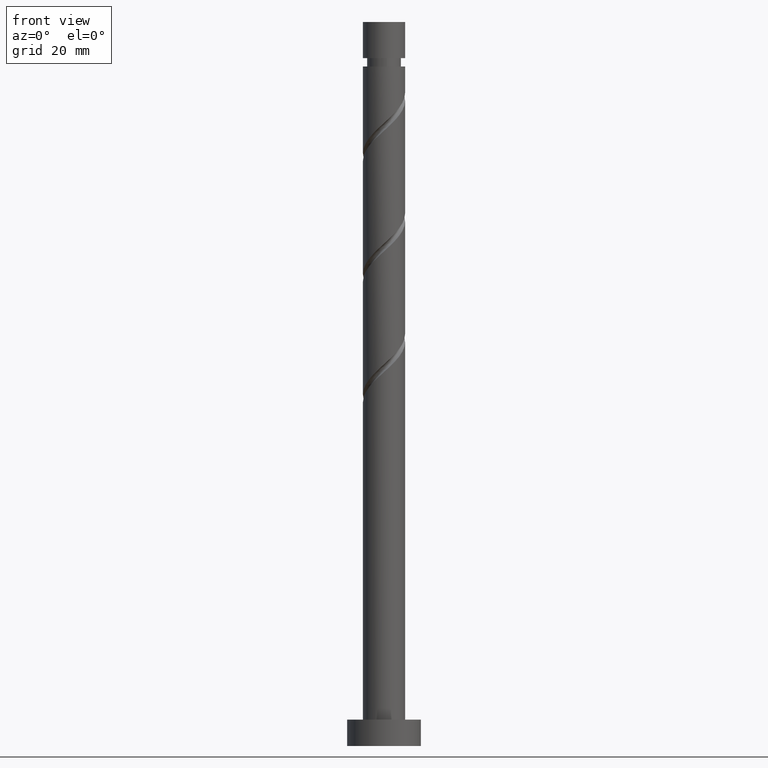
[diagram: clean part render]
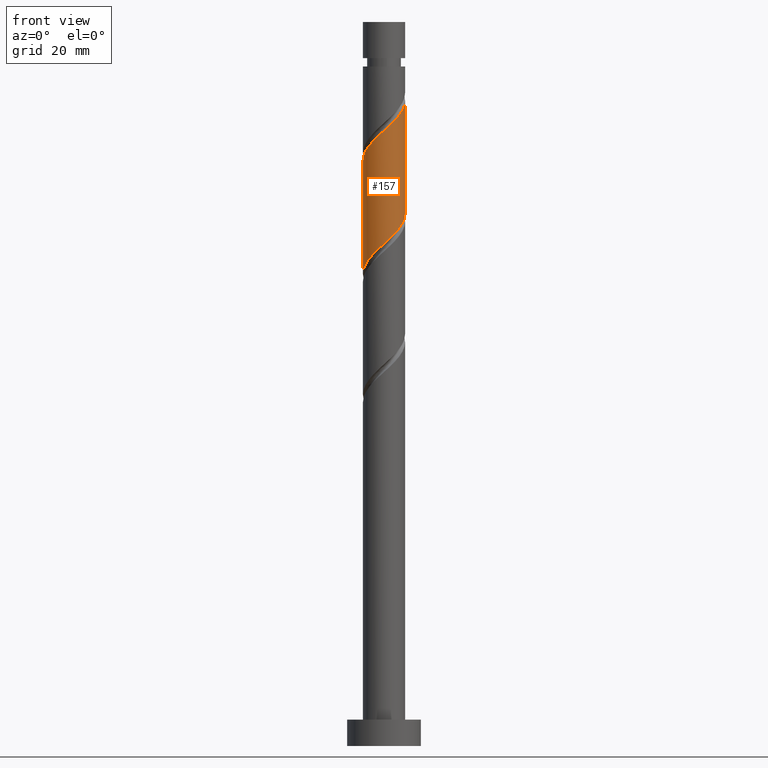
[diagram: same view with one face highlighted and labeled with its STEP entity id]
A machine part, front view. The second image highlights one B-rep face of the part: STEP entity #157.
In plain terms, the highlighted cylindrical surface (edge-blend (fillet) strip) has radius 4 mm, axis along (-0, -0, -1).
Its self-contained STEP definition (entity closure, byte-faithful):
#20 = CARTESIAN_POINT ( 'NONE',  ( -1.083753322405399011, -3.902159508677980337, 115.8593698345876817 ) ) ;
#25 = CARTESIAN_POINT ( 'NONE',  ( 0.7959899496852964607, -3.920000000000007034, 117.5779948345876988 ) ) ;
#27 = VERTEX_POINT ( 'NONE', #565 ) ;
#28 = EDGE_CURVE ( 'NONE', #27, #826, #1504, .T. ) ;
#35 = CARTESIAN_POINT ( 'NONE',  ( -3.170406666830039022, -2.519899137249416832, 113.5678698345876967 ) ) ;
#43 = CARTESIAN_POINT ( 'NONE',  ( -3.482167122072592047, -1.968378046503448386, 112.9949948345876720 ) ) ;
#118 = CARTESIAN_POINT ( 'NONE',  ( 2.236544262273462813, -3.376276034017703154, 97.52736983458765962 ) ) ;
#144 = EDGE_CURVE ( 'NONE', #1176, #27, #641, .T. ) ;
#157 = ADVANCED_FACE ( 'NONE', ( #268 ), #1475, .T. ) ;
#162 = CARTESIAN_POINT ( 'NONE',  ( 3.376276034017708483, -2.236544262273469030, 120.4423698345877085 ) ) ;
#178 = CARTESIAN_POINT ( 'NONE',  ( 4.000000000000004441, -0.2278949497857362949, 122.3670682959247955 ) ) ;
#187 = CARTESIAN_POINT ( 'NONE',  ( 2.948087585633562213, -2.703475464551753582, 119.8694948345876981 ) ) ;
#199 = ORIENTED_EDGE ( 'NONE', *, *, #1163, .F. ) ;
#213 = CARTESIAN_POINT ( 'NONE',  ( -3.974115965681417784, -0.4543151893961412391, 90.07999483458767997 ) ) ;
#223 = CARTESIAN_POINT ( 'NONE',  ( -4.000000000000000888, 4.827779096192269279E-15, 89.66547433600965178 ) ) ;
#239 = EDGE_LOOP ( 'NONE', ( #348, #199, #687, #459 ) ) ;
#261 = LINE ( 'NONE', #1275, #1138 ) ;
#268 = FACE_OUTER_BOUND ( 'NONE', #239, .T. ) ;
#320 = CARTESIAN_POINT ( 'NONE',  ( -0.1751229436131145900, -4.046072422684861891, 95.23586983458766042 ) ) ;
#329 = CARTESIAN_POINT ( 'NONE',  ( 0.4543151893961410170, -3.974115965681417784, 95.80874483458765667 ) ) ;
#348 = ORIENTED_EDGE ( 'NONE', *, *, #144, .F. ) ;
#353 = CARTESIAN_POINT ( 'NONE',  ( 4.000000000000005329, 1.169462017090045067E-15, 122.5755153331656828 ) ) ;
#382 = CARTESIAN_POINT ( 'NONE',  ( 0.1751229436131130912, -4.046072422684867220, 117.0051198345876884 ) ) ;
#403 = CARTESIAN_POINT ( 'NONE',  ( 2.519899137249416832, -3.170406666830039022, 119.2966198345876592 ) ) ;
#410 = AXIS2_PLACEMENT_3D ( 'NONE', #1376, #1360, #1368 ) ;
#429 = CARTESIAN_POINT ( 'NONE',  ( 3.639217771347843300, -1.660148792339434465, 121.0152448345876905 ) ) ;
#431 = CARTESIAN_POINT ( 'NONE',  ( -4.000000000000007994, -0.4020151261036816748, 111.4857236217483205 ) ) ;
#459 = ORIENTED_EDGE ( 'NONE', *, *, #28, .F. ) ;
#464 = CARTESIAN_POINT ( 'NONE',  ( 4.000000000000000888, -0.4020151261036825074, 100.7552660474270425 ) ) ;
#487 = CARTESIAN_POINT ( 'NONE',  ( 1.416856955757479275, -3.793927577315144184, 118.1508698345876809 ) ) ;
#513 = CARTESIAN_POINT ( 'NONE',  ( -2.703475464551753582, -2.948087585633562213, 114.1407448345876787 ) ) ;
#545 = CARTESIAN_POINT ( 'NONE',  ( -4.000000000000005329, -1.739199922851861698E-15, 111.1180153331657152 ) ) ;
#565 = CARTESIAN_POINT ( 'NONE',  ( 4.000000000000000000, 5.817323879883851002E-15, 101.1229743360096620 ) ) ;
#594 = CARTESIAN_POINT ( 'NONE',  ( -2.519899137249413723, -3.170406666830032805, 92.94436983458766122 ) ) ;
#641 = LINE ( 'NONE', #775, #1136 ) ;
#666 = CARTESIAN_POINT ( 'NONE',  ( 3.902159508677980337, -1.083753322405399455, 121.5881198345876868 ) ) ;
#687 = ORIENTED_EDGE ( 'NONE', *, *, #1248, .T. ) ;
#692 = CARTESIAN_POINT ( 'NONE',  ( -3.639217771347837971, -1.660148792339430468, 91.22574483458765826 ) ) ;
#701 = CARTESIAN_POINT ( 'NONE',  ( -0.7959899496852967937, -3.919999999999999929, 94.66299483458767838 ) ) ;
#702 = CARTESIAN_POINT ( 'NONE',  ( -3.793927577315144184, -1.416856955757479941, 112.4221198345876900 ) ) ;
#718 = CARTESIAN_POINT ( 'NONE',  ( 4.000000000000000000, 5.817323879883851002E-15, 101.1229743360096620 ) ) ;
#741 = CARTESIAN_POINT ( 'NONE',  ( -1.660148792339434465, -3.639217771347843300, 115.2864948345876996 ) ) ;
#775 = CARTESIAN_POINT ( 'NONE',  ( 4.000000000000000000, 4.898587196589412829E-16, 137.4900000000000091 ) ) ;
#777 = CARTESIAN_POINT ( 'NONE',  ( 3.974115965681424001, -0.4543151893961434040, 122.1609948345876688 ) ) ;
#798 = VERTEX_POINT ( 'NONE', #1460 ) ;
#804 = CARTESIAN_POINT ( 'NONE',  ( -1.968378046503446388, -3.482167122072585830, 93.51724483458765746 ) ) ;
#814 = CARTESIAN_POINT ( 'NONE',  ( 3.482167122072585830, -1.968378046503446832, 99.24599483458767679 ) ) ;
#826 = VERTEX_POINT ( 'NONE', #853 ) ;
#838 = CARTESIAN_POINT ( 'NONE',  ( -0.4543151893961431820, -3.974115965681424001, 116.4322448345877064 ) ) ;
#853 = CARTESIAN_POINT ( 'NONE',  ( -4.000000000000000888, 4.827779096192269279E-15, 89.66547433600965178 ) ) ;
#901 = DIRECTION ( 'NONE',  ( -0.000000000000000000, -0.000000000000000000, -1.000000000000000000 ) ) ;
#920 = CARTESIAN_POINT ( 'NONE',  ( -2.236544262273468142, -3.376276034017708483, 114.7136198345876750 ) ) ;
#945 = CARTESIAN_POINT ( 'NONE',  ( 2.703475464551749141, -2.948087585633559105, 98.10024483458769851 ) ) ;
#953 = CARTESIAN_POINT ( 'NONE',  ( 3.793927577315137079, -1.416856955757479053, 99.81886983458765883 ) ) ;
#1002 = CARTESIAN_POINT ( 'NONE',  ( 4.000000000000005329, 1.169462017090045067E-15, 122.5755153331656828 ) ) ;
#1057 = CARTESIAN_POINT ( 'NONE',  ( 1.083753322405396124, -3.902159508677974564, 96.38161983458763871 ) ) ;
#1094 = CARTESIAN_POINT ( 'NONE',  ( -2.948087585633559105, -2.703475464551749141, 92.37149483458767918 ) ) ;
#1136 = VECTOR ( 'NONE', #901, 1000.000000000000000 ) ;
#1138 = VECTOR ( 'NONE', #1155, 1000.000000000000000 ) ;
#1155 = DIRECTION ( 'NONE',  ( -0.000000000000000000, -0.000000000000000000, -1.000000000000000000 ) ) ;
#1163 = EDGE_CURVE ( 'NONE', #798, #1176, #1282, .T. ) ;
#1167 = CARTESIAN_POINT ( 'NONE',  ( 3.170406666830032805, -2.519899137249413723, 98.67311983458766633 ) ) ;
#1176 = VERTEX_POINT ( 'NONE', #353 ) ;
#1203 = CARTESIAN_POINT ( 'NONE',  ( -1.416856955757478831, -3.793927577315137079, 94.09011983458766792 ) ) ;
#1248 = EDGE_CURVE ( 'NONE', #798, #826, #261, .T. ) ;
#1275 = CARTESIAN_POINT ( 'NONE',  ( -4.000000000000000000, 0.000000000000000000, 137.4900000000000091 ) ) ;
#1282 =( BOUNDED_CURVE ( )  B_SPLINE_CURVE ( 2, ( #545, #431, #1334, #702, #43, #35, #513, #920, #741, #20, #838, #382, #25, #487, #1462, #403, #187, #162, #429, #666, #777, #178, #1002 ),
 .UNSPECIFIED., .F., .T. ) 
 B_SPLINE_CURVE_WITH_KNOTS ( ( 3, 2, 2, 2, 2, 2, 2, 2, 2, 2, 2, 3 ),
 ( 0.5545322023138551382, 0.5625000000000000000, 0.5749999999999999556, 0.5875000000000000222, 0.5999999999999999778, 0.6125000000000000444, 0.6250000000000000000, 0.6374999999999999556, 0.6500000000000000222, 0.6624999999999999778, 0.6750000000000000444, 0.6795322023138551382 ),
 .UNSPECIFIED. ) 
 CURVE ( )  GEOMETRIC_REPRESENTATION_ITEM ( )  RATIONAL_B_SPLINE_CURVE ( ( 0.9039174447099409537, 0.9019565955404700297, 0.9090909090909186085, 0.8978984914501346726, 0.9090909090909186085, 0.8978984914501346726, 0.9090909090909186085, 0.8978984914501346726, 0.9090909090909186085, 0.8978984914501346726, 0.9090909090909186085, 0.8978984914501346726, 0.9090909090909186085, 0.8978984914501346726, 0.9090909090909186085, 0.8978984914501346726, 0.9090909090909186085, 0.8978984914501346726, 0.9090909090909186085, 0.8978984914501346726, 0.9090909090909186085, 0.9050328050005831404, 0.9039174447099409537 ) ) 
 REPRESENTATION_ITEM ( '' )  );
#1286 = CARTESIAN_POINT ( 'NONE',  ( -3.902159508677974564, -1.083753322405396347, 90.65286983458766201 ) ) ;
#1309 = CARTESIAN_POINT ( 'NONE',  ( -4.000000000000000000, -0.2278949497857344353, 89.87392137325052488 ) ) ;
#1334 = CARTESIAN_POINT ( 'NONE',  ( -3.920000000000007034, -0.7959899496852967937, 111.8492448345876937 ) ) ;
#1360 = DIRECTION ( 'NONE',  ( -0.000000000000000000, -0.000000000000000000, -1.000000000000000000 ) ) ;
#1368 = DIRECTION ( 'NONE',  ( -1.000000000000000000, 0.000000000000000000, 0.000000000000000000 ) ) ;
#1376 = CARTESIAN_POINT ( 'NONE',  ( 0.000000000000000000, 0.000000000000000000, 137.4900000000000091 ) ) ;
#1427 = CARTESIAN_POINT ( 'NONE',  ( 1.660148792339430468, -3.639217771347837971, 96.95449483458766338 ) ) ;
#1440 = CARTESIAN_POINT ( 'NONE',  ( 3.919999999999999929, -0.7959899496852969047, 100.3917448345876693 ) ) ;
#1460 = CARTESIAN_POINT ( 'NONE',  ( -4.000000000000005329, -1.739199922851861698E-15, 111.1180153331657152 ) ) ;
#1462 = CARTESIAN_POINT ( 'NONE',  ( 1.968378046503448386, -3.482167122072592047, 118.7237448345876771 ) ) ;
#1475 = CYLINDRICAL_SURFACE ( 'NONE', #410, 4.000000000000000000 ) ;
#1504 =( BOUNDED_CURVE ( )  B_SPLINE_CURVE ( 2, ( #718, #464, #1440, #953, #814, #1167, #945, #118, #1427, #1057, #329, #320, #701, #1203, #804, #594, #1094, #1575, #692, #1286, #213, #1309, #223 ),
 .UNSPECIFIED., .F., .T. ) 
 B_SPLINE_CURVE_WITH_KNOTS ( ( 3, 2, 2, 2, 2, 2, 2, 2, 2, 2, 2, 3 ),
 ( 0.5545322023138551382, 0.5625000000000000000, 0.5749999999999999556, 0.5875000000000000222, 0.5999999999999999778, 0.6125000000000000444, 0.6250000000000000000, 0.6374999999999999556, 0.6500000000000000222, 0.6624999999999999778, 0.6750000000000000444, 0.6795322023138551382 ),
 .UNSPECIFIED. ) 
 CURVE ( )  GEOMETRIC_REPRESENTATION_ITEM ( )  RATIONAL_B_SPLINE_CURVE ( ( 0.9039174447099351806, 0.9019565955404644786, 0.9090909090909128354, 0.8978984914501290104, 0.9090909090909128354, 0.8978984914501290104, 0.9090909090909128354, 0.8978984914501290104, 0.9090909090909128354, 0.8978984914501290104, 0.9090909090909128354, 0.8978984914501290104, 0.9090909090909128354, 0.8978984914501290104, 0.9090909090909128354, 0.8978984914501290104, 0.9090909090909128354, 0.8978984914501290104, 0.9090909090909128354, 0.8978984914501290104, 0.9090909090909128354, 0.9050328050005773672, 0.9039174447099351806 ) ) 
 REPRESENTATION_ITEM ( '' )  );
#1575 = CARTESIAN_POINT ( 'NONE',  ( -3.376276034017703154, -2.236544262273462813, 91.79861983458764030 ) ) ;